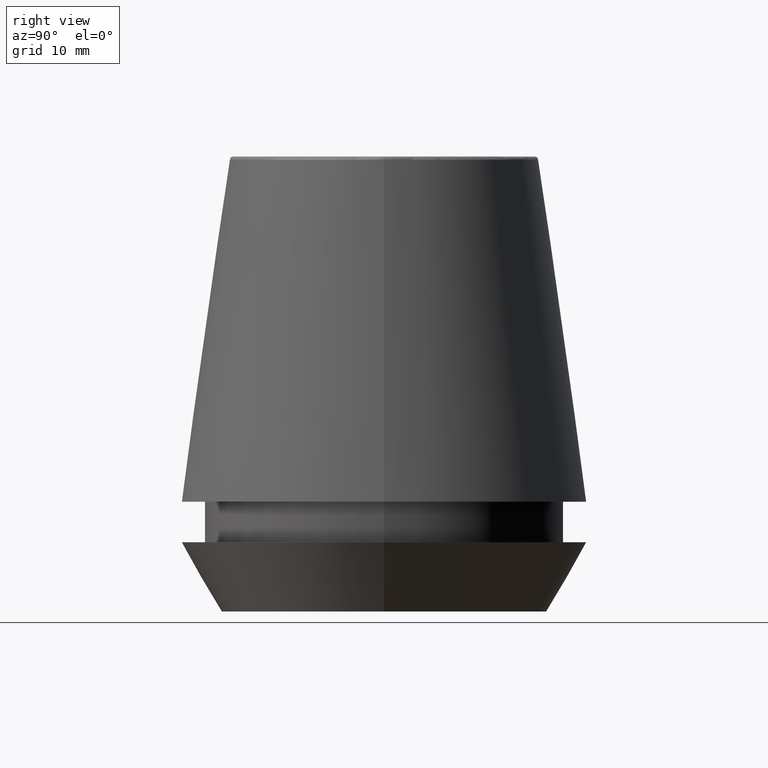
[diagram: clean part render]
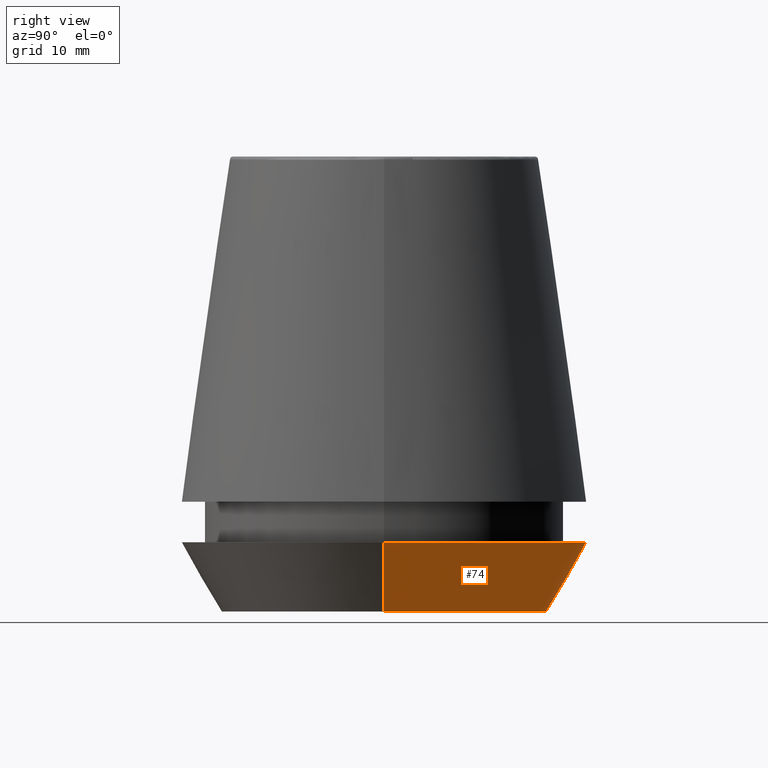
[diagram: same view with one face highlighted and labeled with its STEP entity id]
A machine part, right view. The second image highlights one B-rep face of the part: STEP entity #74.
In plain terms, the highlighted conical surface has half-angle 30 deg.
Its self-contained STEP definition (entity closure, byte-faithful):
#9 = CIRCLE ( 'NONE', #41, 16.45854811567268100 ) ;
#20 = DIRECTION ( 'NONE',  ( 1.000000000000000000, 0.0000000000000000000, 0.0000000000000000000 ) ) ;
#21 = EDGE_CURVE ( 'NONE', #239, #330, #156, .T. ) ;
#28 = CIRCLE ( 'NONE', #308, 20.50000000000000000 ) ;
#35 = VERTEX_POINT ( 'NONE', #317 ) ;
#41 = AXIS2_PLACEMENT_3D ( 'NONE', #198, #379, #238 ) ;
#44 = CARTESIAN_POINT ( 'NONE',  ( 16.45854811567268100, 0.0000000000000000000, 0.0000000000000000000 ) ) ;
#45 = VECTOR ( 'NONE', #299, 1000.000000000000000 ) ;
#74 = ADVANCED_FACE ( 'NONE', ( #304 ), #179, .T. ) ;
#79 = AXIS2_PLACEMENT_3D ( 'NONE', #340, #120, #178 ) ;
#105 = CARTESIAN_POINT ( 'NONE',  ( -16.45854811567268100, 2.015590826847124800E-015, 0.0000000000000000000 ) ) ;
#109 = CARTESIAN_POINT ( 'NONE',  ( 20.50000000000000000, 0.0000000000000000000, 7.000000000000006200 ) ) ;
#120 = DIRECTION ( 'NONE',  ( -0.0000000000000000000, -0.0000000000000000000, 1.000000000000000000 ) ) ;
#121 = DIRECTION ( 'NONE',  ( 0.4999999999999941700, 0.0000000000000000000, 0.8660254037844420400 ) ) ;
#132 = LINE ( 'NONE', #105, #45 ) ;
#137 = DIRECTION ( 'NONE',  ( -0.0000000000000000000, -0.0000000000000000000, 1.000000000000000000 ) ) ;
#156 = LINE ( 'NONE', #343, #250 ) ;
#170 = ORIENTED_EDGE ( 'NONE', *, *, #21, .F. ) ;
#173 = CARTESIAN_POINT ( 'NONE',  ( -16.45854811567268100, 2.263058382549599700E-015, 0.0000000000000000000 ) ) ;
#178 = DIRECTION ( 'NONE',  ( 1.000000000000000000, 0.0000000000000000000, 0.0000000000000000000 ) ) ;
#179 = CONICAL_SURFACE ( 'NONE', #79, 16.45854811567268100, 0.5235987755982921500 ) ;
#198 = CARTESIAN_POINT ( 'NONE',  ( 0.0000000000000000000, 0.0000000000000000000, 0.0000000000000000000 ) ) ;
#205 = ORIENTED_EDGE ( 'NONE', *, *, #270, .F. ) ;
#214 = VERTEX_POINT ( 'NONE', #173 ) ;
#238 = DIRECTION ( 'NONE',  ( 1.000000000000000000, 0.0000000000000000000, 0.0000000000000000000 ) ) ;
#239 = VERTEX_POINT ( 'NONE', #44 ) ;
#246 = ORIENTED_EDGE ( 'NONE', *, *, #264, .T. ) ;
#250 = VECTOR ( 'NONE', #121, 1000.000000000000000 ) ;
#251 = EDGE_LOOP ( 'NONE', ( #246, #267, #205, #170 ) ) ;
#264 = EDGE_CURVE ( 'NONE', #239, #214, #9, .T. ) ;
#267 = ORIENTED_EDGE ( 'NONE', *, *, #329, .T. ) ;
#270 = EDGE_CURVE ( 'NONE', #330, #35, #28, .T. ) ;
#299 = DIRECTION ( 'NONE',  ( -0.4999999999999941700, 6.123233995736694500E-017, 0.8660254037844420400 ) ) ;
#304 = FACE_OUTER_BOUND ( 'NONE', #251, .T. ) ;
#308 = AXIS2_PLACEMENT_3D ( 'NONE', #327, #137, #20 ) ;
#317 = CARTESIAN_POINT ( 'NONE',  ( -20.50000000000000000, 2.510525938252074100E-015, 7.000000000000006200 ) ) ;
#327 = CARTESIAN_POINT ( 'NONE',  ( 0.0000000000000000000, 0.0000000000000000000, 7.000000000000006200 ) ) ;
#329 = EDGE_CURVE ( 'NONE', #214, #35, #132, .T. ) ;
#330 = VERTEX_POINT ( 'NONE', #109 ) ;
#340 = CARTESIAN_POINT ( 'NONE',  ( 0.0000000000000000000, 0.0000000000000000000, 0.0000000000000000000 ) ) ;
#343 = CARTESIAN_POINT ( 'NONE',  ( 16.45854811567268100, 0.0000000000000000000, 0.0000000000000000000 ) ) ;
#379 = DIRECTION ( 'NONE',  ( -0.0000000000000000000, -0.0000000000000000000, 1.000000000000000000 ) ) ;